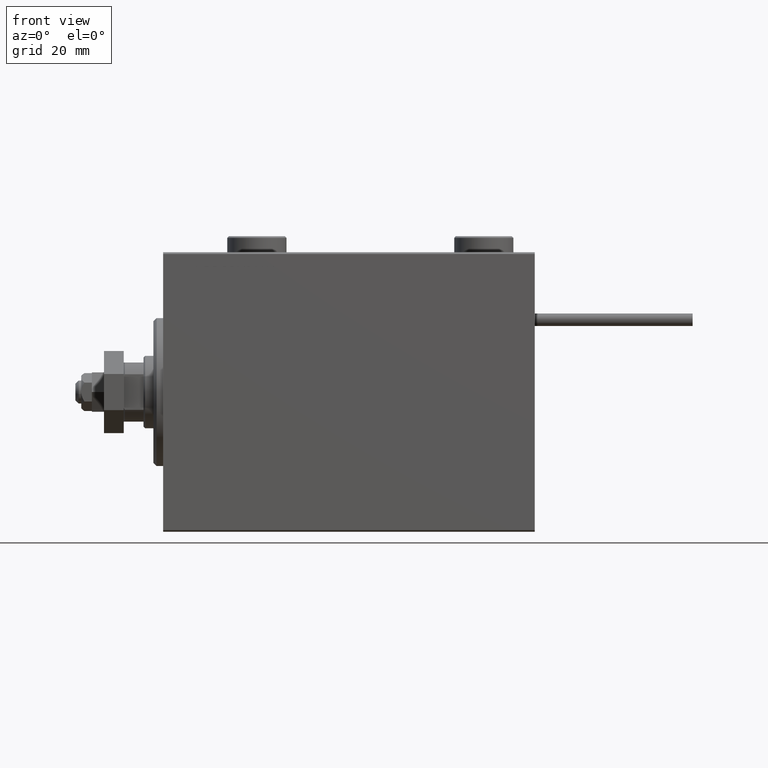
[diagram: clean part render]
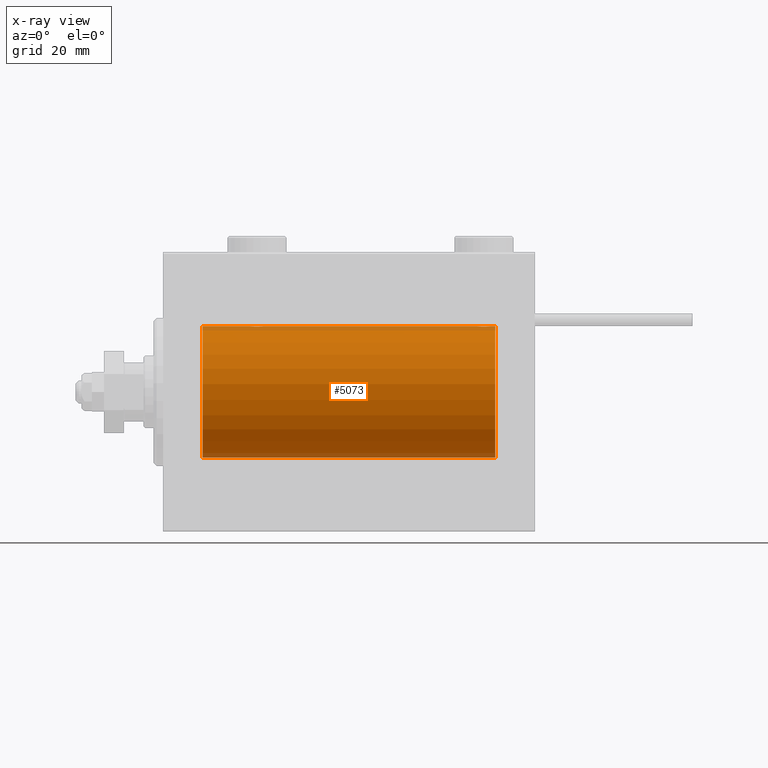
[diagram: x-ray — body ghosted, one internal face saturated and labeled with its STEP entity id]
A machine part, front view, then the same camera in x-ray: the body is ghosted and one INTERNAL B-rep face — a face not visible from any outside direction — is saturated and labeled: STEP entity #5073.
In plain terms, the highlighted cylindrical surface (partial cylindrical patch) has radius 20 mm, axis along (-1, -0, -0).
Its self-contained STEP definition (entity closure, byte-faithful):
#261 = CARTESIAN_POINT ( 'NONE',  ( 101.0000000000000000, 0.000000000000000000, 20.00000000000000000 ) ) ;
#312 = CARTESIAN_POINT ( 'NONE',  ( 96.49693443660399339, -1.735203193119890352, 19.92471783160910803 ) ) ;
#520 = CARTESIAN_POINT ( 'NONE',  ( 29.50067219139244656, -1.736582545981375292, 19.92459705242981371 ) ) ;
#567 = CARTESIAN_POINT ( 'NONE',  ( 96.85369326075360163, -1.897222639860597360, 19.90987429971497491 ) ) ;
#671 = VERTEX_POINT ( 'NONE', #28460 ) ;
#832 = CARTESIAN_POINT ( 'NONE',  ( 97.36634803857555198, -1.999898234284061216, 19.89975896996866922 ) ) ;
#1035 = CARTESIAN_POINT ( 'NONE',  ( 29.14348528733041377, -1.898187925611340088, 19.90978194174746818 ) ) ;
#1307 = CARTESIAN_POINT ( 'NONE',  ( 26.55244937117492299, -0.5243189001515023984, 19.99457699142850586 ) ) ;
#1568 = CARTESIAN_POINT ( 'NONE',  ( 28.36634803857552001, -1.999898234284063436, 19.89975896996866211 ) ) ;
#2319 = CARTESIAN_POINT ( 'NONE',  ( 98.50306556339604924, -1.735203193119900122, -19.92471783160911158 ) ) ;
#2744 = VECTOR ( 'NONE', #3381, 1000.000000000000000 ) ;
#2843 = CARTESIAN_POINT ( 'NONE',  ( 97.36941128289166159, -2.000100592782561471, -19.89973863218036243 ) ) ;
#3381 = DIRECTION ( 'NONE',  ( -1.000000000000000000, -0.000000000000000000, -0.000000000000000000 ) ) ;
#3609 = ORIENTED_EDGE ( 'NONE', *, *, #27228, .T. ) ;
#3628 = CARTESIAN_POINT ( 'NONE',  ( 95.55320515808205073, -0.5270924491156777636, -19.99450181871976540 ) ) ;
#4274 = CIRCLE ( 'NONE', #46706, 20.00000000000000000 ) ;
#4297 = CARTESIAN_POINT ( 'NONE',  ( 96.27971054205538337, -1.589957321664204448, 19.93683391378736403 ) ) ;
#4584 = CARTESIAN_POINT ( 'NONE',  ( 101.0000000000000000, 2.449293598294706513E-15, -20.00000000000000000 ) ) ;
#4854 = LINE ( 'NONE', #13363, #20589 ) ;
#4980 = EDGE_LOOP ( 'NONE', ( #36247, #34150, #45302, #5394, #12000, #30360, #44596, #13913, #3609, #6076, #46498, #7819 ) ) ;
#5073 = ADVANCED_FACE ( 'NONE', ( #37660 ), #47416, .F. ) ;
#5084 = CARTESIAN_POINT ( 'NONE',  ( 95.50000000000001421, -0.2610801504281927699, 20.00000000000000355 ) ) ;
#5135 = VECTOR ( 'NONE', #6927, 1000.000000000000000 ) ;
#5258 = EDGE_CURVE ( 'NONE', #50705, #19729, #4274, .T. ) ;
#5394 = ORIENTED_EDGE ( 'NONE', *, *, #9418, .T. ) ;
#5498 = CARTESIAN_POINT ( 'NONE',  ( 101.0000000000000000, 0.000000000000000000, 0.000000000000000000 ) ) ;
#6033 = EDGE_CURVE ( 'NONE', #51001, #46057, #9410, .T. ) ;
#6076 = ORIENTED_EDGE ( 'NONE', *, *, #39520, .F. ) ;
#6263 = B_SPLINE_CURVE_WITH_KNOTS ( 'NONE', 3,
 ( #27809, #7879, #32059, #52523, #15069, #23559, #35528, #48277, #11874, #47231, #31267, #36051, #36312, #31005, #7614, #10810, #27285, #43230, #31537, #35786, #7082, #6822, #23035, #52260, #39243, #47488 ),
 .UNSPECIFIED., .F., .F.,
 ( 4, 2, 2, 2, 2, 2, 2, 2, 2, 2, 2, 2, 4 ),
 ( 0.006256819553329842284, 0.007038738568778818427, 0.007820657584227792836, 0.008211617091952278305, 0.008602576599676762040, 0.008993536107401245774, 0.009384495615125729509, 0.009775455122850213244, 0.01016641463057469871, 0.01055737413829918071, 0.01094833364602366618, 0.01173025266147263365, 0.01251217167692159939 ),
 .UNSPECIFIED. ) ;
#6565 = CARTESIAN_POINT ( 'NONE',  ( 97.76358144091416591, -1.986835489085820639, -19.90108393514801222 ) ) ;
#6822 = CARTESIAN_POINT ( 'NONE',  ( 26.90225308445269903, -1.230936344679278260, -19.96293863536309132 ) ) ;
#6927 = DIRECTION ( 'NONE',  ( -1.000000000000000000, -0.000000000000000000, -0.000000000000000000 ) ) ;
#7082 = CARTESIAN_POINT ( 'NONE',  ( 27.17903093152710525, -1.507328959728492457, -19.94333197382385592 ) ) ;
#7614 = CARTESIAN_POINT ( 'NONE',  ( 28.23922743968432059, -1.987205673487808966, -19.90104673894211018 ) ) ;
#7627 = CARTESIAN_POINT ( 'NONE',  ( 99.09941524884030173, -1.228758402364235724, -19.96307487248084556 ) ) ;
#7819 = ORIENTED_EDGE ( 'NONE', *, *, #35939, .F. ) ;
#7879 = CARTESIAN_POINT ( 'NONE',  ( 30.49999999999999645, -0.2610801504281900498, -19.99999999999999645 ) ) ;
#7891 = CARTESIAN_POINT ( 'NONE',  ( 95.90225308445270969, -1.230936344679285144, -19.96293863536309843 ) ) ;
#8037 = CARTESIAN_POINT ( 'NONE',  ( 99.44679484191794927, -0.5270924491156651071, 19.99450181871975829 ) ) ;
#8508 = VERTEX_POINT ( 'NONE', #14524 ) ;
#8814 = CARTESIAN_POINT ( 'NONE',  ( 98.38579076670728796, -1.797933656607910713, 19.91908554465557657 ) ) ;
#9074 = CARTESIAN_POINT ( 'NONE',  ( 30.50000000000000000, -4.014971335008767791E-15, 20.00000000000000000 ) ) ;
#9410 = CIRCLE ( 'NONE', #27230, 20.00000000000000000 ) ;
#9418 = EDGE_CURVE ( 'NONE', #671, #13419, #14441, .T. ) ;
#9506 = DIRECTION ( 'NONE',  ( -1.000000000000000000, -0.000000000000000000, -0.000000000000000000 ) ) ;
#9543 = CARTESIAN_POINT ( 'NONE',  ( 11.99999999999999645, 0.000000000000000000, 20.00000000000000000 ) ) ;
#9783 = EDGE_CURVE ( 'NONE', #8508, #50705, #52550, .T. ) ;
#10706 = CARTESIAN_POINT ( 'NONE',  ( 101.0000000000000000, 2.449293598294706513E-15, -20.00000000000000000 ) ) ;
#10810 = CARTESIAN_POINT ( 'NONE',  ( 27.98351467081095123, -1.936551476643005198, -19.90603968831098314 ) ) ;
#11165 = B_SPLINE_CURVE_WITH_KNOTS ( 'NONE', 3,
 ( #37503, #5084, #40701, #44449, #24749, #49216, #4297, #312, #36463, #567, #16531, #32738, #832, #12801, #21287, #33514, #49739, #8814, #49472, #28227, #25010, #32474, #41219, #8037, #37242, #13062 ),
 .UNSPECIFIED., .F., .F.,
 ( 4, 2, 2, 2, 2, 2, 2, 2, 2, 2, 2, 2, 4 ),
 ( 0.006256819553329836213, 0.007038738568778784600, 0.007820657584227733855, 0.008211617091952222794, 0.008602576599676711733, 0.008993536107401198937, 0.009384495615125687876, 0.009775455122850176815, 0.01016641463057466402, 0.01055737413829915296, 0.01094833364602364190, 0.01173025266147261630, 0.01251217167692159418 ),
 .UNSPECIFIED. ) ;
#11363 = CARTESIAN_POINT ( 'NONE',  ( 98.14630673924646942, -1.897222639860602245, -19.90987429971496425 ) ) ;
#11629 = CARTESIAN_POINT ( 'NONE',  ( 99.24825913460016125, -1.005710574260839651, -19.97614991974274901 ) ) ;
#11874 = CARTESIAN_POINT ( 'NONE',  ( 29.38829437207091999, -1.796691196322316664, -19.91919800395357143 ) ) ;
#12000 = ORIENTED_EDGE ( 'NONE', *, *, #46734, .T. ) ;
#12402 = CARTESIAN_POINT ( 'NONE',  ( 96.17903093152715144, -1.507328959728500006, -19.94333197382386302 ) ) ;
#12749 = CARTESIAN_POINT ( 'NONE',  ( 30.44679484191797414, -0.5270924491156706582, 19.99450181871975829 ) ) ;
#12801 = CARTESIAN_POINT ( 'NONE',  ( 97.63058871710833841, -2.000100592782551256, 19.89973863218035888 ) ) ;
#12960 = LINE ( 'NONE', #28913, #43032 ) ;
#13062 = CARTESIAN_POINT ( 'NONE',  ( 99.50000000000000000, 9.984436361108698300E-16, 20.00000000000000000 ) ) ;
#13363 = CARTESIAN_POINT ( 'NONE',  ( 101.0000000000000000, 0.000000000000000000, 20.00000000000000000 ) ) ;
#13419 = VERTEX_POINT ( 'NONE', #27633 ) ;
#13804 = CARTESIAN_POINT ( 'NONE',  ( 27.27971054205535850, -1.589957321664211998, 19.93683391378736047 ) ) ;
#13913 = ORIENTED_EDGE ( 'NONE', *, *, #27157, .F. ) ;
#14393 = CARTESIAN_POINT ( 'NONE',  ( 101.0000000000000000, 0.000000000000000000, 20.00000000000000000 ) ) ;
#14441 = LINE ( 'NONE', #10706, #23089 ) ;
#14524 = CARTESIAN_POINT ( 'NONE',  ( 26.50000000000000355, -3.809869420541414000E-15, -20.00000000000000000 ) ) ;
#14819 = CARTESIAN_POINT ( 'NONE',  ( 98.72028945794467347, -1.589957321664213330, -19.93683391378736758 ) ) ;
#15069 = CARTESIAN_POINT ( 'NONE',  ( 30.09941524884030173, -1.228758402364235502, -19.96307487248084911 ) ) ;
#16531 = CARTESIAN_POINT ( 'NONE',  ( 96.98076487864724982, -1.935816449315123977, 19.90611141657402072 ) ) ;
#16739 = CARTESIAN_POINT ( 'NONE',  ( 27.85369326075355545, -1.897222639860597360, 19.90987429971497491 ) ) ;
#17260 = CARTESIAN_POINT ( 'NONE',  ( 28.23641855908585541, -1.986835489085814643, 19.90108393514801222 ) ) ;
#18693 = DIRECTION ( 'NONE',  ( -1.000000000000000000, -0.000000000000000000, -0.000000000000000000 ) ) ;
#19046 = CARTESIAN_POINT ( 'NONE',  ( 96.98351467081093347, -1.936551476643015191, -19.90603968831098669 ) ) ;
#19489 = VERTEX_POINT ( 'NONE', #9074 ) ;
#19729 = VERTEX_POINT ( 'NONE', #9543 ) ;
#20121 = VERTEX_POINT ( 'NONE', #38416 ) ;
#20589 = VECTOR ( 'NONE', #29572, 1000.000000000000000 ) ;
#20709 = CARTESIAN_POINT ( 'NONE',  ( 26.50000000000000355, -1.552596590610734385E-23, 20.00000000000000000 ) ) ;
#20973 = CARTESIAN_POINT ( 'NONE',  ( 26.90058475115969827, -1.228758402364236391, 19.96307487248084556 ) ) ;
#21234 = CARTESIAN_POINT ( 'NONE',  ( 28.76077256031567586, -1.987205673487810298, 19.90104673894210663 ) ) ;
#21287 = CARTESIAN_POINT ( 'NONE',  ( 97.76077256031565810, -1.987205673487806967, 19.90104673894210663 ) ) ;
#22751 = CARTESIAN_POINT ( 'NONE',  ( 99.50000000000000000, 2.449293582762473501E-15, -20.00000000000000000 ) ) ;
#23035 = CARTESIAN_POINT ( 'NONE',  ( 26.75313023696928738, -1.008108445278687704, -19.97602680192586533 ) ) ;
#23089 = VECTOR ( 'NONE', #46866, 1000.000000000000000 ) ;
#23321 = CARTESIAN_POINT ( 'NONE',  ( 101.0000000000000000, 2.449293598294706513E-15, -20.00000000000000000 ) ) ;
#23559 = CARTESIAN_POINT ( 'NONE',  ( 29.82306668919470383, -1.505486175075772870, -19.94347168299867334 ) ) ;
#23832 = CARTESIAN_POINT ( 'NONE',  ( 95.50000000000002842, -0.2644051013331136790, -20.00000000000000355 ) ) ;
#24264 = CARTESIAN_POINT ( 'NONE',  ( 11.99999999999999645, 0.000000000000000000, 0.000000000000000000 ) ) ;
#24437 = LINE ( 'NONE', #261, #51611 ) ;
#24617 = CARTESIAN_POINT ( 'NONE',  ( 95.50000000000000000, -1.207436508668459186E-14, -20.00000000000000000 ) ) ;
#24702 = CARTESIAN_POINT ( 'NONE',  ( 27.98076487864722495, -1.935816449315125087, 19.90611141657401362 ) ) ;
#24749 = CARTESIAN_POINT ( 'NONE',  ( 95.90058475115969827, -1.228758402364240609, 19.96307487248084911 ) ) ;
#25010 = CARTESIAN_POINT ( 'NONE',  ( 98.82096906847290541, -1.507328959728488238, 19.94333197382385947 ) ) ;
#25747 = CARTESIAN_POINT ( 'NONE',  ( 27.17693331080528907, -1.505486175075773758, 19.94347168299867690 ) ) ;
#26319 = AXIS2_PLACEMENT_3D ( 'NONE', #5498, #18693, #33673 ) ;
#27157 = EDGE_CURVE ( 'NONE', #20121, #19729, #24437, .T. ) ;
#27228 = EDGE_CURVE ( 'NONE', #20121, #19489, #29500, .T. ) ;
#27230 = AXIS2_PLACEMENT_3D ( 'NONE', #37935, #30740, #46959 ) ;
#27285 = CARTESIAN_POINT ( 'NONE',  ( 27.85651471266959334, -1.898187925611338533, -19.90978194174746818 ) ) ;
#27633 = CARTESIAN_POINT ( 'NONE',  ( 30.50000000000000000, 2.449293582768389958E-15, -20.00000000000000000 ) ) ;
#27809 = CARTESIAN_POINT ( 'NONE',  ( 30.50000000000000000, 2.449293582768389958E-15, -20.00000000000000000 ) ) ;
#28086 = CARTESIAN_POINT ( 'NONE',  ( 96.28194580527851087, -1.591668229360199804, -19.93669678979812687 ) ) ;
#28227 = CARTESIAN_POINT ( 'NONE',  ( 98.71805419472153176, -1.591668229360190034, 19.93669678979813042 ) ) ;
#28258 = DIRECTION ( 'NONE',  ( -1.000000000000000000, 0.000000000000000000, 0.000000000000000000 ) ) ;
#28460 = CARTESIAN_POINT ( 'NONE',  ( 95.50000000000000000, -1.207436508668459186E-14, -20.00000000000000000 ) ) ;
#28540 = EDGE_CURVE ( 'NONE', #51001, #38916, #12960, .T. ) ;
#28913 = CARTESIAN_POINT ( 'NONE',  ( 101.0000000000000000, 2.449293598294706513E-15, -20.00000000000000000 ) ) ;
#29073 = B_SPLINE_CURVE_WITH_KNOTS ( 'NONE', 3,
 ( #51742, #48029, #31020, #11629, #7627, #38735, #14819, #2319, #46987, #11363, #42978, #6565, #38994, #2843, #47242, #19046, #35279, #33122, #40047, #28086, #12402, #7891, #48552, #3628, #23832, #24617 ),
 .UNSPECIFIED., .F., .F.,
 ( 4, 2, 2, 2, 2, 2, 2, 2, 2, 2, 2, 2, 4 ),
 ( 0.006256819553329824070, 0.007038738568778795009, 0.007820657584227765080, 0.008211617091952250549, 0.008602576599676736019, 0.008993536107401221488, 0.009384495615125706958, 0.009775455122850190692, 0.01016641463057467790, 0.01055737413829916163, 0.01094833364602364884, 0.01173025266147261630, 0.01251217167692158724 ),
 .UNSPECIFIED. ) ;
#29500 = B_SPLINE_CURVE_WITH_KNOTS ( 'NONE', 3,
 ( #20709, #37713, #1307, #49162, #20973, #25747, #13804, #37186, #40903, #16739, #24702, #17260, #1568, #50207, #21234, #36926, #1035, #37981, #520, #41436, #37449, #41167, #33464, #12749, #45971, #32940 ),
 .UNSPECIFIED., .F., .F.,
 ( 4, 2, 2, 2, 2, 2, 2, 2, 2, 2, 2, 2, 4 ),
 ( 0.006256819553329811059, 0.007038738568778783733, 0.007820657584227756406, 0.008211617091952238406, 0.008602576599676722141, 0.008993536107401204141, 0.009384495615125686141, 0.009775455122850168141, 0.01016641463057465014, 0.01055737413829913214, 0.01094833364602361414, 0.01173025266147257814, 0.01251217167692154214 ),
 .UNSPECIFIED. ) ;
#29572 = DIRECTION ( 'NONE',  ( -1.000000000000000000, -0.000000000000000000, -0.000000000000000000 ) ) ;
#30360 = ORIENTED_EDGE ( 'NONE', *, *, #9783, .T. ) ;
#30740 = DIRECTION ( 'NONE',  ( -1.000000000000000000, 0.000000000000000000, 0.000000000000000000 ) ) ;
#31005 = CARTESIAN_POINT ( 'NONE',  ( 28.36941128289166159, -2.000100592782553921, -19.89973863218036598 ) ) ;
#31020 = CARTESIAN_POINT ( 'NONE',  ( 99.44755062882506991, -0.5243189001514980685, -19.99457699142850231 ) ) ;
#31267 = CARTESIAN_POINT ( 'NONE',  ( 29.01923512135276795, -1.935816449315124643, -19.90611141657401717 ) ) ;
#31514 = VERTEX_POINT ( 'NONE', #49683 ) ;
#31537 = CARTESIAN_POINT ( 'NONE',  ( 27.49932780860757475, -1.736582545981376180, -19.92459705242981371 ) ) ;
#31721 = DIRECTION ( 'NONE',  ( 0.000000000000000000, 0.000000000000000000, 1.000000000000000000 ) ) ;
#32059 = CARTESIAN_POINT ( 'NONE',  ( 30.44755062882508412, -0.5243189001514996228, -19.99457699142849876 ) ) ;
#32474 = CARTESIAN_POINT ( 'NONE',  ( 99.09774691554729031, -1.230936344679272043, 19.96293863536309487 ) ) ;
#32738 = CARTESIAN_POINT ( 'NONE',  ( 97.23641855908584830, -1.986835489085812867, 19.90108393514801577 ) ) ;
#32940 = CARTESIAN_POINT ( 'NONE',  ( 30.50000000000000000, -4.014971335008767791E-15, 20.00000000000000000 ) ) ;
#33122 = CARTESIAN_POINT ( 'NONE',  ( 96.61420923329271204, -1.797933656607926700, -19.91908554465557302 ) ) ;
#33464 = CARTESIAN_POINT ( 'NONE',  ( 30.24686976303072328, -1.008108445278687926, 19.97602680192586888 ) ) ;
#33514 = CARTESIAN_POINT ( 'NONE',  ( 98.01648532918906653, -1.936551476643001202, 19.90603968831098669 ) ) ;
#33673 = DIRECTION ( 'NONE',  ( 0.000000000000000000, 0.000000000000000000, 1.000000000000000000 ) ) ;
#34150 = ORIENTED_EDGE ( 'NONE', *, *, #28540, .T. ) ;
#35279 = CARTESIAN_POINT ( 'NONE',  ( 96.85651471266960755, -1.898187925611348081, -19.90978194174746818 ) ) ;
#35528 = CARTESIAN_POINT ( 'NONE',  ( 29.72028945794465571, -1.589957321664208223, -19.93683391378736047 ) ) ;
#35786 = CARTESIAN_POINT ( 'NONE',  ( 27.28194580527848601, -1.591668229360197140, -19.93669678979812332 ) ) ;
#35939 = EDGE_CURVE ( 'NONE', #46057, #31514, #43338, .T. ) ;
#36051 = CARTESIAN_POINT ( 'NONE',  ( 28.76358144091416236, -1.986835489085814199, -19.90108393514801222 ) ) ;
#36247 = ORIENTED_EDGE ( 'NONE', *, *, #6033, .F. ) ;
#36312 = CARTESIAN_POINT ( 'NONE',  ( 28.63365196142448355, -1.999898234284062992, -19.89975896996866211 ) ) ;
#36463 = CARTESIAN_POINT ( 'NONE',  ( 96.61170562792906935, -1.796691196322320216, 19.91919800395356788 ) ) ;
#36926 = CARTESIAN_POINT ( 'NONE',  ( 29.01648532918905943, -1.936551476643006753, 19.90603968831098669 ) ) ;
#37186 = CARTESIAN_POINT ( 'NONE',  ( 27.49693443660397918, -1.735203193119897902, 19.92471783160911158 ) ) ;
#37242 = CARTESIAN_POINT ( 'NONE',  ( 99.50000000000000000, -0.2644051013330985245, 19.99999999999999645 ) ) ;
#37449 = CARTESIAN_POINT ( 'NONE',  ( 29.82096906847289119, -1.507328959728493567, 19.94333197382385592 ) ) ;
#37503 = CARTESIAN_POINT ( 'NONE',  ( 95.50000000000000000, -1.553188236289650144E-23, 20.00000000000000000 ) ) ;
#37660 = FACE_OUTER_BOUND ( 'NONE', #4980, .T. ) ;
#37713 = CARTESIAN_POINT ( 'NONE',  ( 26.50000000000000711, -0.2610801504281929919, 20.00000000000000000 ) ) ;
#37935 = CARTESIAN_POINT ( 'NONE',  ( 101.0000000000000000, 0.000000000000000000, 0.000000000000000000 ) ) ;
#37981 = CARTESIAN_POINT ( 'NONE',  ( 29.38579076670729151, -1.797933656607919817, 19.91908554465558367 ) ) ;
#38124 = CARTESIAN_POINT ( 'NONE',  ( 11.99999999999999645, 2.449293598294706513E-15, -20.00000000000000000 ) ) ;
#38416 = CARTESIAN_POINT ( 'NONE',  ( 26.50000000000000355, -1.552596590610734385E-23, 20.00000000000000000 ) ) ;
#38735 = CARTESIAN_POINT ( 'NONE',  ( 98.82306668919471804, -1.505486175075774646, -19.94347168299867334 ) ) ;
#38805 = VERTEX_POINT ( 'NONE', #40339 ) ;
#38916 = VERTEX_POINT ( 'NONE', #22751 ) ;
#38994 = CARTESIAN_POINT ( 'NONE',  ( 97.63365196142450486, -1.999898234284069432, -19.89975896996866211 ) ) ;
#39243 = CARTESIAN_POINT ( 'NONE',  ( 26.50000000000001066, -0.2644051013331030209, -20.00000000000000355 ) ) ;
#39520 = EDGE_CURVE ( 'NONE', #38805, #19489, #4854, .T. ) ;
#40047 = CARTESIAN_POINT ( 'NONE',  ( 96.49932780860756054, -1.736582545981379289, -19.92459705242981016 ) ) ;
#40339 = CARTESIAN_POINT ( 'NONE',  ( 95.50000000000000000, -1.553188236289650144E-23, 20.00000000000000000 ) ) ;
#40388 = DIRECTION ( 'NONE',  ( -1.000000000000000000, -0.000000000000000000, -0.000000000000000000 ) ) ;
#40701 = CARTESIAN_POINT ( 'NONE',  ( 95.55244937117491588, -0.5243189001515019543, 19.99457699142849876 ) ) ;
#40903 = CARTESIAN_POINT ( 'NONE',  ( 27.61170562792909422, -1.796691196322319994, 19.91919800395357143 ) ) ;
#41167 = CARTESIAN_POINT ( 'NONE',  ( 30.09774691554730097, -1.230936344679278482, 19.96293863536309132 ) ) ;
#41219 = CARTESIAN_POINT ( 'NONE',  ( 99.24686976303073038, -1.008108445278681931, 19.97602680192586178 ) ) ;
#41436 = CARTESIAN_POINT ( 'NONE',  ( 29.71805419472152110, -1.591668229360196252, 19.93669678979812332 ) ) ;
#42510 = EDGE_CURVE ( 'NONE', #38916, #671, #29073, .T. ) ;
#42978 = CARTESIAN_POINT ( 'NONE',  ( 98.01923512135277861, -1.935816449315129750, -19.90611141657401362 ) ) ;
#43032 = VECTOR ( 'NONE', #9506, 1000.000000000000000 ) ;
#43230 = CARTESIAN_POINT ( 'NONE',  ( 27.61420923329272981, -1.797933656607917596, -19.91908554465558367 ) ) ;
#43338 = LINE ( 'NONE', #14393, #5135 ) ;
#44449 = CARTESIAN_POINT ( 'NONE',  ( 95.75174086539981033, -1.005710574260841872, 19.97614991974274190 ) ) ;
#44596 = ORIENTED_EDGE ( 'NONE', *, *, #5258, .T. ) ;
#45302 = ORIENTED_EDGE ( 'NONE', *, *, #42510, .T. ) ;
#45971 = CARTESIAN_POINT ( 'NONE',  ( 30.49999999999999289, -0.2644051013330969702, 20.00000000000000711 ) ) ;
#46057 = VERTEX_POINT ( 'NONE', #51903 ) ;
#46498 = ORIENTED_EDGE ( 'NONE', *, *, #49250, .T. ) ;
#46706 = AXIS2_PLACEMENT_3D ( 'NONE', #24264, #28258, #31721 ) ;
#46734 = EDGE_CURVE ( 'NONE', #13419, #8508, #6263, .T. ) ;
#46866 = DIRECTION ( 'NONE',  ( -1.000000000000000000, -0.000000000000000000, -0.000000000000000000 ) ) ;
#46959 = DIRECTION ( 'NONE',  ( 0.000000000000000000, 0.000000000000000000, 1.000000000000000000 ) ) ;
#46987 = CARTESIAN_POINT ( 'NONE',  ( 98.38829437207090223, -1.796691196322323103, -19.91919800395357143 ) ) ;
#47231 = CARTESIAN_POINT ( 'NONE',  ( 29.14630673924643744, -1.897222639860594029, -19.90987429971496780 ) ) ;
#47242 = CARTESIAN_POINT ( 'NONE',  ( 97.23922743968432769, -1.987205673487818514, -19.90104673894210663 ) ) ;
#47416 = CYLINDRICAL_SURFACE ( 'NONE', #26319, 20.00000000000000000 ) ;
#47488 = CARTESIAN_POINT ( 'NONE',  ( 26.50000000000000355, -3.809869420541414000E-15, -20.00000000000000000 ) ) ;
#48029 = CARTESIAN_POINT ( 'NONE',  ( 99.49999999999998579, -0.2610801504281911045, -19.99999999999999645 ) ) ;
#48277 = CARTESIAN_POINT ( 'NONE',  ( 29.50306556339602437, -1.735203193119894349, -19.92471783160910803 ) ) ;
#48552 = CARTESIAN_POINT ( 'NONE',  ( 95.75313023696931225, -1.008108445278694587, -19.97602680192586888 ) ) ;
#49162 = CARTESIAN_POINT ( 'NONE',  ( 26.75174086539981033, -1.005710574260841206, 19.97614991974274190 ) ) ;
#49216 = CARTESIAN_POINT ( 'NONE',  ( 96.17693331080533881, -1.505486175075777311, 19.94347168299868045 ) ) ;
#49250 = EDGE_CURVE ( 'NONE', #38805, #31514, #11165, .T. ) ;
#49472 = CARTESIAN_POINT ( 'NONE',  ( 98.50067219139243946, -1.736582545981368852, 19.92459705242980661 ) ) ;
#49683 = CARTESIAN_POINT ( 'NONE',  ( 99.50000000000000000, 9.984436361108698300E-16, 20.00000000000000000 ) ) ;
#49739 = CARTESIAN_POINT ( 'NONE',  ( 98.14348528733043509, -1.898187925611334315, 19.90978194174746818 ) ) ;
#50207 = CARTESIAN_POINT ( 'NONE',  ( 28.63058871710834552, -2.000100592782553921, 19.89973863218035888 ) ) ;
#50705 = VERTEX_POINT ( 'NONE', #38124 ) ;
#51001 = VERTEX_POINT ( 'NONE', #4584 ) ;
#51611 = VECTOR ( 'NONE', #40388, 1000.000000000000000 ) ;
#51742 = CARTESIAN_POINT ( 'NONE',  ( 99.50000000000000000, 2.449293582762473501E-15, -20.00000000000000000 ) ) ;
#51903 = CARTESIAN_POINT ( 'NONE',  ( 101.0000000000000000, 0.000000000000000000, 20.00000000000000000 ) ) ;
#52260 = CARTESIAN_POINT ( 'NONE',  ( 26.55320515808203297, -0.5270924491156698810, -19.99450181871976184 ) ) ;
#52523 = CARTESIAN_POINT ( 'NONE',  ( 30.24825913460018612, -1.005710574260838985, -19.97614991974274190 ) ) ;
#52550 = LINE ( 'NONE', #23321, #2744 ) ;